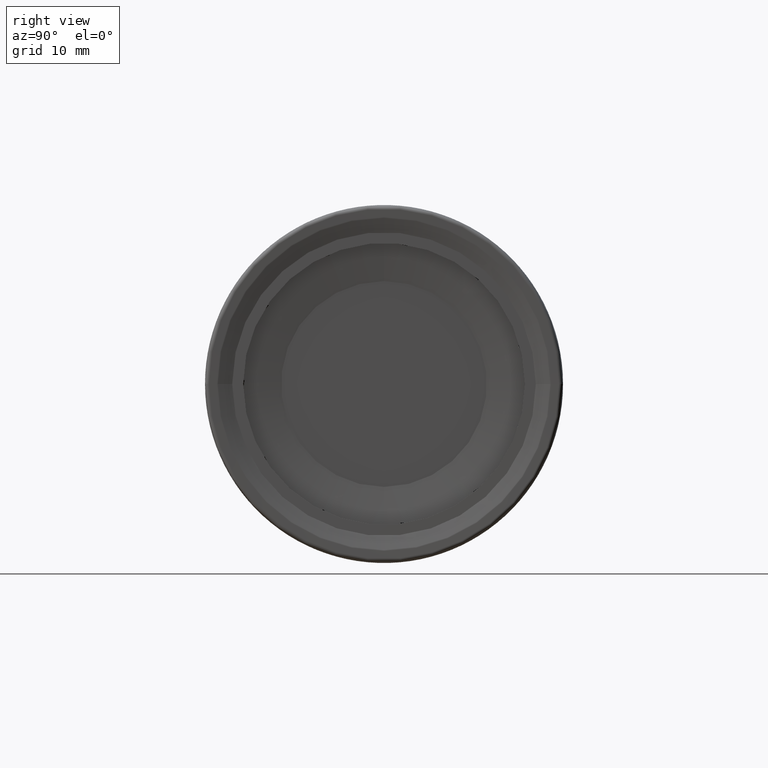
[diagram: clean part render]
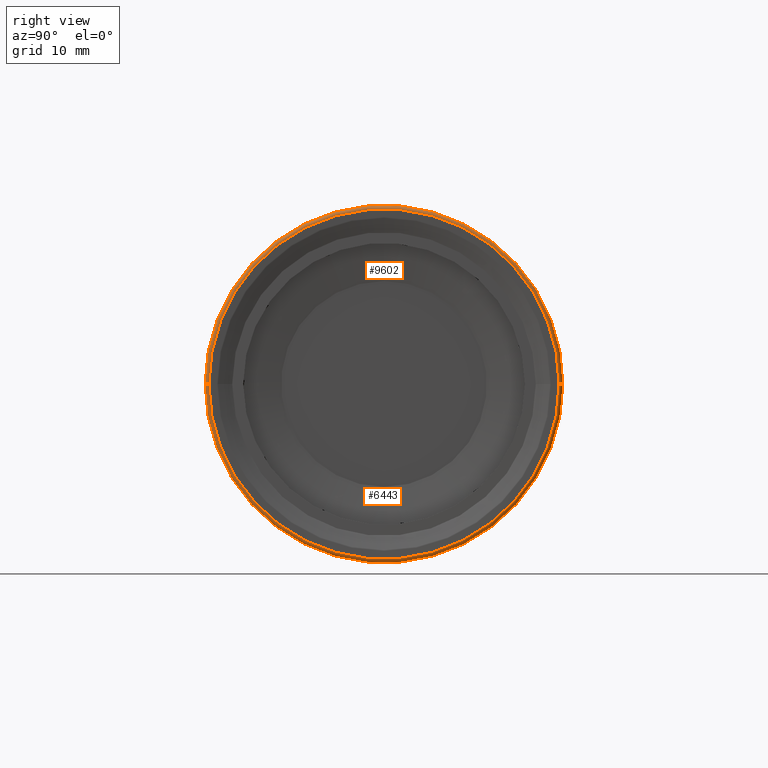
[diagram: same view with one multi-face feature highlighted, each face labeled with its STEP entity id]
A machine part, right view. The highlighted faces form ONE feature: a constant-radius fillet chain: 2 tangent blend faces with common blend radius 0.3973 mm. The faces share edges in the B-rep.
Their STEP definitions:
[1] entity #9602 (Torus):
#75 = VERTEX_POINT ( 'NONE', #8920 ) ;
#76 = VERTEX_POINT ( 'NONE', #8921 ) ;
#77 = VERTEX_POINT ( 'NONE', #8922 ) ;
#78 = VERTEX_POINT ( 'NONE', #8923 ) ;
#927 = EDGE_LOOP ( 'NONE', ( #2368, #2365, #2364, #2286 ) ) ;
#1287 = DIRECTION ( 'NONE',  ( 1.000000000000000000, 1.571897673459263300E-016, -0.0000000000000000000 ) ) ;
#1290 = FACE_OUTER_BOUND ( 'NONE', #927, .T. ) ;
#1291 = CARTESIAN_POINT ( 'NONE',  ( 0.05271361019858894500, 0.0000000000000000000, 0.0000000000000000000 ) ) ;
#1293 = DIRECTION ( 'NONE',  ( -1.571897673459263300E-016, 1.000000000000000000, 0.0000000000000000000 ) ) ;
#2286 = ORIENTED_EDGE ( 'NONE', *, *, #9907, .F. ) ;
#2364 = ORIENTED_EDGE ( 'NONE', *, *, #9803, .F. ) ;
#2365 = ORIENTED_EDGE ( 'NONE', *, *, #9805, .T. ) ;
#2368 = ORIENTED_EDGE ( 'NONE', *, *, #9795, .T. ) ;
#2612 = CIRCLE ( 'NONE', #2619, 19.97752900429670200 ) ;
#2619 = AXIS2_PLACEMENT_3D ( 'NONE', #5191, #5192, #5193 ) ;
#2629 = CIRCLE ( 'NONE', #2646, 19.56801536347121800 ) ;
#2646 = AXIS2_PLACEMENT_3D ( 'NONE', #5219, #5220, #5221 ) ;
#2648 = CIRCLE ( 'NONE', #2652, 0.3972863898013892500 ) ;
#2652 = AXIS2_PLACEMENT_3D ( 'NONE', #5225, #5226, #5227 ) ;
#2824 = CIRCLE ( 'NONE', #2827, 0.3972863898013875300 ) ;
#2827 = AXIS2_PLACEMENT_3D ( 'NONE', #5762, #5764, #5765 ) ;
#5191 = CARTESIAN_POINT ( 'NONE',  ( 0.06179182594681729300, -1.110176161091528400E-015, 0.0000000000000000000 ) ) ;
#5192 = DIRECTION ( 'NONE',  ( 1.000000000000000000, 1.571897673459263300E-016, -0.0000000000000000000 ) ) ;
#5193 = DIRECTION ( 'NONE',  ( -1.573861461811278900E-016, 1.000000000000000000, 0.0000000000000000000 ) ) ;
#5219 = CARTESIAN_POINT ( 'NONE',  ( 0.4498085891553862400, -1.049183896356454100E-015, 0.0000000000000000000 ) ) ;
#5220 = DIRECTION ( 'NONE',  ( 1.000000000000000000, 1.571897673459263300E-016, -0.0000000000000000000 ) ) ;
#5221 = DIRECTION ( 'NONE',  ( -1.579095342163278700E-016, 1.000000000000000000, 0.0000000000000000000 ) ) ;
#5225 = CARTESIAN_POINT ( 'NONE',  ( 0.05271361019859201900, -19.58034634918667600, 2.397900848272802900E-015 ) ) ;
#5226 = DIRECTION ( 'NONE',  ( -1.925019454389058200E-032, 1.224646799147353200E-016, 1.000000000000000000 ) ) ;
#5227 = DIRECTION ( 'NONE',  ( 0.0000000000000000000, -1.000000000000000000, 1.224646799147348800E-016 ) ) ;
#5762 = CARTESIAN_POINT ( 'NONE',  ( 0.05271361019858587100, 19.58034634918667600, 0.0000000000000000000 ) ) ;
#5764 = DIRECTION ( 'NONE',  ( -0.0000000000000000000, 0.0000000000000000000, -1.000000000000000000 ) ) ;
#5765 = DIRECTION ( 'NONE',  ( -1.000000000000000000, 0.0000000000000000000, 0.0000000000000000000 ) ) ;
#8149 = TOROIDAL_SURFACE ( 'NONE', #8155, 19.58034634918667600, 0.3972863898013875300 ) ;
#8155 = AXIS2_PLACEMENT_3D ( 'NONE', #1291, #1287, #1293 ) ;
#8920 = CARTESIAN_POINT ( 'NONE',  ( 0.06179182594682043600, -19.97752900429670200, 2.446541694998536500E-015 ) ) ;
#8921 = CARTESIAN_POINT ( 'NONE',  ( 0.06179182594681415000, 19.97752900429670200, 0.0000000000000000000 ) ) ;
#8922 = CARTESIAN_POINT ( 'NONE',  ( 0.4498085891553893500, -19.56801536347121800, 2.396390738054126000E-015 ) ) ;
#8923 = CARTESIAN_POINT ( 'NONE',  ( 0.4498085891553831900, 19.56801536347121800, 0.0000000000000000000 ) ) ;
#9602 = ADVANCED_FACE ( 'NONE', ( #1290 ), #8149, .T. ) ;
#9795 = EDGE_CURVE ( 'NONE', #76, #75, #2612, .T. ) ;
#9803 = EDGE_CURVE ( 'NONE', #78, #77, #2629, .T. ) ;
#9805 = EDGE_CURVE ( 'NONE', #75, #77, #2648, .T. ) ;
#9907 = EDGE_CURVE ( 'NONE', #76, #78, #2824, .T. ) ;
[2] entity #6443 (Torus):
#75 = VERTEX_POINT ( 'NONE', #8920 ) ;
#76 = VERTEX_POINT ( 'NONE', #8921 ) ;
#77 = VERTEX_POINT ( 'NONE', #8922 ) ;
#78 = VERTEX_POINT ( 'NONE', #8923 ) ;
#178 = EDGE_LOOP ( 'NONE', ( #10990, #8870, #10944, #10947 ) ) ;
#2648 = CIRCLE ( 'NONE', #2652, 0.3972863898013892500 ) ;
#2652 = AXIS2_PLACEMENT_3D ( 'NONE', #5225, #5226, #5227 ) ;
#2824 = CIRCLE ( 'NONE', #2827, 0.3972863898013875300 ) ;
#2827 = AXIS2_PLACEMENT_3D ( 'NONE', #5762, #5764, #5765 ) ;
#3469 = CIRCLE ( 'NONE', #3473, 19.56801536347121800 ) ;
#3473 = AXIS2_PLACEMENT_3D ( 'NONE', #10729, #10730, #10731 ) ;
#4777 = TOROIDAL_SURFACE ( 'NONE', #4787, 19.58034634918667600, 0.3972863898013875300 ) ;
#4787 = AXIS2_PLACEMENT_3D ( 'NONE', #8690, #8692, #8698 ) ;
#5225 = CARTESIAN_POINT ( 'NONE',  ( 0.05271361019859201900, -19.58034634918667600, 2.397900848272802900E-015 ) ) ;
#5226 = DIRECTION ( 'NONE',  ( -1.925019454389058200E-032, 1.224646799147353200E-016, 1.000000000000000000 ) ) ;
#5227 = DIRECTION ( 'NONE',  ( 0.0000000000000000000, -1.000000000000000000, 1.224646799147348800E-016 ) ) ;
#5646 = EDGE_CURVE ( 'NONE', #75, #76, #10846, .T. ) ;
#5762 = CARTESIAN_POINT ( 'NONE',  ( 0.05271361019858587100, 19.58034634918667600, 0.0000000000000000000 ) ) ;
#5764 = DIRECTION ( 'NONE',  ( -0.0000000000000000000, 0.0000000000000000000, -1.000000000000000000 ) ) ;
#5765 = DIRECTION ( 'NONE',  ( -1.000000000000000000, 0.0000000000000000000, 0.0000000000000000000 ) ) ;
#6443 = ADVANCED_FACE ( 'NONE', ( #8696 ), #4777, .T. ) ;
#7699 = CARTESIAN_POINT ( 'NONE',  ( 0.06179182594681729300, -1.110176161091528400E-015, 0.0000000000000000000 ) ) ;
#7700 = DIRECTION ( 'NONE',  ( 1.000000000000000000, 1.571897673459263300E-016, -0.0000000000000000000 ) ) ;
#7701 = DIRECTION ( 'NONE',  ( -1.573861461811278900E-016, 1.000000000000000000, 0.0000000000000000000 ) ) ;
#8690 = CARTESIAN_POINT ( 'NONE',  ( 0.05271361019858894500, 0.0000000000000000000, 0.0000000000000000000 ) ) ;
#8692 = DIRECTION ( 'NONE',  ( 1.000000000000000000, 1.571897673459263300E-016, -0.0000000000000000000 ) ) ;
#8696 = FACE_OUTER_BOUND ( 'NONE', #178, .T. ) ;
#8698 = DIRECTION ( 'NONE',  ( -1.571897673459263300E-016, 1.000000000000000000, 0.0000000000000000000 ) ) ;
#8870 = ORIENTED_EDGE ( 'NONE', *, *, #5646, .T. ) ;
#8920 = CARTESIAN_POINT ( 'NONE',  ( 0.06179182594682043600, -19.97752900429670200, 2.446541694998536500E-015 ) ) ;
#8921 = CARTESIAN_POINT ( 'NONE',  ( 0.06179182594681415000, 19.97752900429670200, 0.0000000000000000000 ) ) ;
#8922 = CARTESIAN_POINT ( 'NONE',  ( 0.4498085891553893500, -19.56801536347121800, 2.396390738054126000E-015 ) ) ;
#8923 = CARTESIAN_POINT ( 'NONE',  ( 0.4498085891553831900, 19.56801536347121800, 0.0000000000000000000 ) ) ;
#9744 = EDGE_CURVE ( 'NONE', #77, #78, #3469, .T. ) ;
#9805 = EDGE_CURVE ( 'NONE', #75, #77, #2648, .T. ) ;
#9907 = EDGE_CURVE ( 'NONE', #76, #78, #2824, .T. ) ;
#10729 = CARTESIAN_POINT ( 'NONE',  ( 0.4498085891553862400, -1.049183896356454100E-015, 0.0000000000000000000 ) ) ;
#10730 = DIRECTION ( 'NONE',  ( 1.000000000000000000, 1.571897673459263300E-016, -0.0000000000000000000 ) ) ;
#10731 = DIRECTION ( 'NONE',  ( -1.579095342163278700E-016, 1.000000000000000000, 0.0000000000000000000 ) ) ;
#10809 = AXIS2_PLACEMENT_3D ( 'NONE', #7699, #7700, #7701 ) ;
#10846 = CIRCLE ( 'NONE', #10809, 19.97752900429670200 ) ;
#10944 = ORIENTED_EDGE ( 'NONE', *, *, #9907, .T. ) ;
#10947 = ORIENTED_EDGE ( 'NONE', *, *, #9744, .F. ) ;
#10990 = ORIENTED_EDGE ( 'NONE', *, *, #9805, .F. ) ;